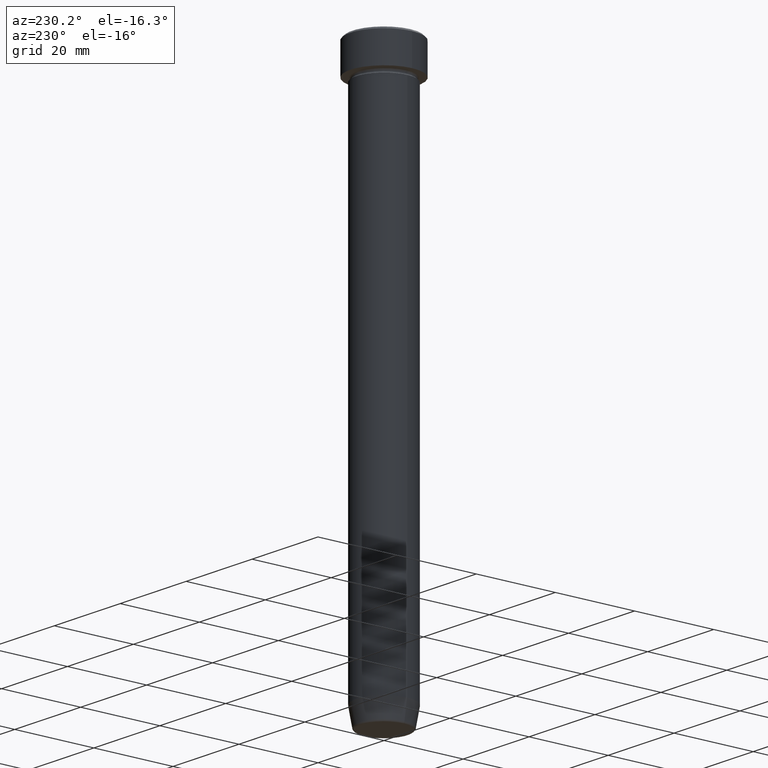
[diagram: clean part render]
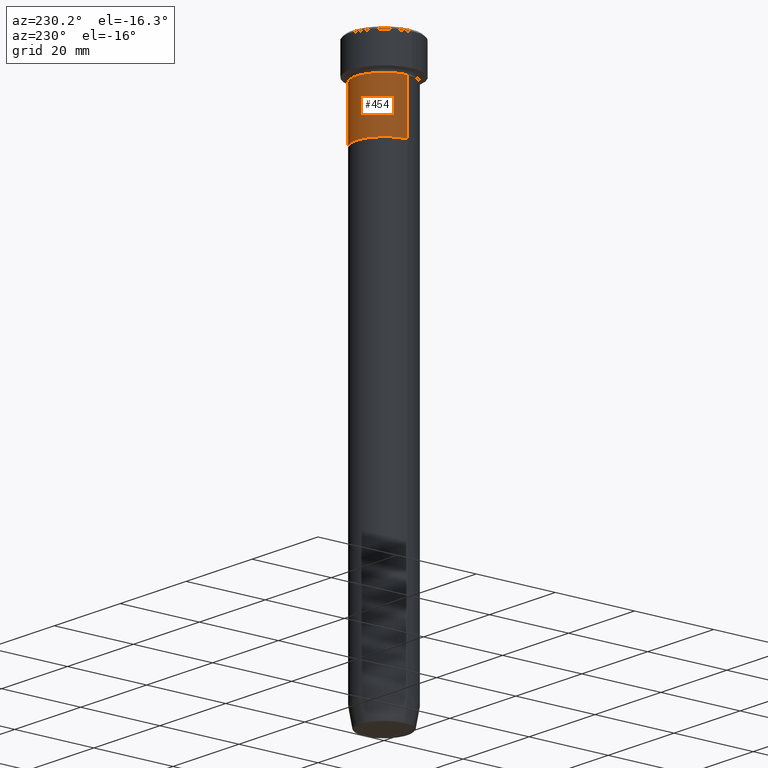
[diagram: same view with one face highlighted and labeled with its STEP entity id]
A machine part, auxiliary view. The second image highlights one B-rep face of the part: STEP entity #454.
In plain terms, the highlighted cylindrical surface (edge-blend (fillet) strip) has radius 7 mm, axis along (-0, -0, 1).
Its self-contained STEP definition (entity closure, byte-faithful):
#5 = ORIENTED_EDGE ( 'NONE', *, *, #293, .T. ) ;
#14 = CARTESIAN_POINT ( 'NONE',  ( 7.000000000000000000, 0.000000000000000000, -9.000000000000001776 ) ) ;
#34 = CYLINDRICAL_SURFACE ( 'NONE', #244, 6.999999999999999112 ) ;
#49 = CIRCLE ( 'NONE', #489, 7.000000000000000000 ) ;
#56 = CARTESIAN_POINT ( 'NONE',  ( 0.000000000000000000, 0.000000000000000000, -22.00000000000000000 ) ) ;
#62 = LINE ( 'NONE', #539, #279 ) ;
#68 = DIRECTION ( 'NONE',  ( 1.000000000000000000, 0.000000000000000000, 0.000000000000000000 ) ) ;
#88 = DIRECTION ( 'NONE',  ( -0.000000000000000000, -0.000000000000000000, 1.000000000000000000 ) ) ;
#111 = CARTESIAN_POINT ( 'NONE',  ( -6.999999999999999112, 8.572527594031472204E-16, -22.00000000000000000 ) ) ;
#147 = ORIENTED_EDGE ( 'NONE', *, *, #554, .T. ) ;
#172 = CARTESIAN_POINT ( 'NONE',  ( -7.000000000000000888, 8.572527594031474176E-16, -9.000000000000001776 ) ) ;
#176 = EDGE_CURVE ( 'NONE', #278, #226, #511, .T. ) ;
#185 = CARTESIAN_POINT ( 'NONE',  ( 6.999999999999999112, 0.000000000000000000, 0.000000000000000000 ) ) ;
#194 = EDGE_LOOP ( 'NONE', ( #147, #5, #345, #484 ) ) ;
#212 = CARTESIAN_POINT ( 'NONE',  ( 0.000000000000000000, 0.000000000000000000, -9.000000000000001776 ) ) ;
#226 = VERTEX_POINT ( 'NONE', #14 ) ;
#244 = AXIS2_PLACEMENT_3D ( 'NONE', #462, #332, #381 ) ;
#278 = VERTEX_POINT ( 'NONE', #401 ) ;
#279 = VECTOR ( 'NONE', #354, 1000.000000000000000 ) ;
#293 = EDGE_CURVE ( 'NONE', #568, #369, #62, .T. ) ;
#299 = AXIS2_PLACEMENT_3D ( 'NONE', #56, #573, #68 ) ;
#332 = DIRECTION ( 'NONE',  ( -0.000000000000000000, -0.000000000000000000, 1.000000000000000000 ) ) ;
#345 = ORIENTED_EDGE ( 'NONE', *, *, #475, .F. ) ;
#352 = VECTOR ( 'NONE', #88, 1000.000000000000000 ) ;
#354 = DIRECTION ( 'NONE',  ( -0.000000000000000000, -0.000000000000000000, 1.000000000000000000 ) ) ;
#356 = DIRECTION ( 'NONE',  ( -0.000000000000000000, -0.000000000000000000, 1.000000000000000000 ) ) ;
#369 = VERTEX_POINT ( 'NONE', #172 ) ;
#381 = DIRECTION ( 'NONE',  ( 1.000000000000000000, 0.000000000000000000, 0.000000000000000000 ) ) ;
#401 = CARTESIAN_POINT ( 'NONE',  ( 6.999999999999999112, 0.000000000000000000, -22.00000000000000000 ) ) ;
#454 = ADVANCED_FACE ( 'NONE', ( #499 ), #34, .T. ) ;
#462 = CARTESIAN_POINT ( 'NONE',  ( 0.000000000000000000, 0.000000000000000000, 0.000000000000000000 ) ) ;
#475 = EDGE_CURVE ( 'NONE', #226, #369, #49, .T. ) ;
#484 = ORIENTED_EDGE ( 'NONE', *, *, #176, .F. ) ;
#489 = AXIS2_PLACEMENT_3D ( 'NONE', #212, #356, #536 ) ;
#499 = FACE_OUTER_BOUND ( 'NONE', #194, .T. ) ;
#511 = LINE ( 'NONE', #185, #352 ) ;
#536 = DIRECTION ( 'NONE',  ( 1.000000000000000000, 0.000000000000000000, 0.000000000000000000 ) ) ;
#539 = CARTESIAN_POINT ( 'NONE',  ( -6.999999999999999112, 8.572527594031472204E-16, 0.000000000000000000 ) ) ;
#551 = CIRCLE ( 'NONE', #299, 6.999999999999999112 ) ;
#554 = EDGE_CURVE ( 'NONE', #278, #568, #551, .T. ) ;
#568 = VERTEX_POINT ( 'NONE', #111 ) ;
#573 = DIRECTION ( 'NONE',  ( -0.000000000000000000, -0.000000000000000000, 1.000000000000000000 ) ) ;